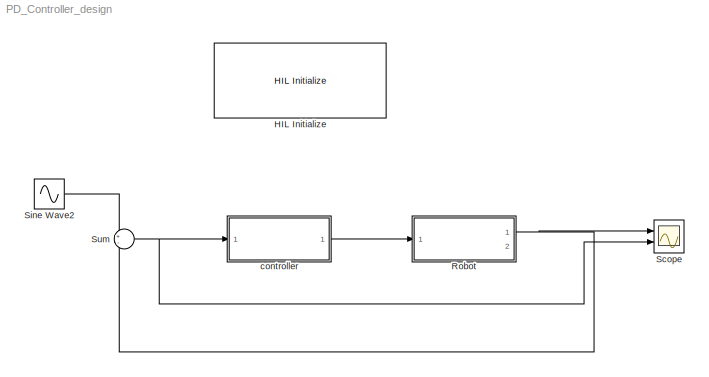
MODEL PD_Controller_design
KIND model
BLOCK [Reference] HIL Initialize  REF=quarc_library/Data Acquisition/Generic/Configuration/HIL Initialize
  AttributesFormatString = %<object_name> (%<board_type>-%<board_number>)
  Ports = []
  SID = 39
  SourceBlock = quarc_library/Data Acquisition/Generic/Configuration/HIL Initialize
  SourceType = HIL Initialize
  UserData = DataTag0
  UserDataPersistent = on
  active = on
  analog_input_channels = [0:3]
  analog_input_maximums = 10
  analog_input_minimums = -10
  analog_output_channels = [0:3]
  analog_output_maximums = [10]
  analog_output_minimums = [-10]
  board_number = 0
  board_type = q4
  clock_modes = [0 0]
  digital_input_channels = []
  digital_output_channels = [0:3]
  digital_output_configuration = []
  encoder_channels = [0:3]
  encoder_filter_frequency = (1/60e-9)/1
  exclusive = off
  final_analog_outputs = [0]
  final_digital_outputs = [1]
  final_other_outputs = []
  final_pwm_outputs = [0]
  hardware_clocks = [0:1]
  initial_analog_outputs = [0]
  initial_clock_frequencies = []
  initial_digital_outputs = [1]
  initial_encoder_counts = [0]
  initial_other_outputs = []
  initial_pwm_outputs = [0]
  object_name = HIL-2
  other_output_channels = []
  pwm_alignment = []
  pwm_channels = []
  pwm_configuration = []
  pwm_frequency = (1/60e-9)/1024
  pwm_leading_deadband = []
  pwm_modes = [0]
  pwm_polarity = []
  pwm_trailing_deadband = []
  quadrature = [4]
  set_analog_input_params_at_start = off
  set_analog_input_params_at_switch_in = off
  set_analog_output_params_at_start = on
  set_analog_output_params_at_switch_in = off
  set_analog_outputs_at_start = on
  set_analog_outputs_at_switch_in = off
  set_analog_outputs_at_switch_out = off
  set_analog_outputs_at_terminate = on
  set_analog_outputs_on_watchdog = off
  set_clock_frequencies_at_start = off
  set_clock_frequencies_at_switch_in = off
  set_clock_params_at_start = on
  set_clock_params_at_switch_in = off
  set_digital_output_params_at_start = off
  set_digital_output_params_at_switch_in = off
  set_digital_outputs_at_start = on
  set_digital_outputs_at_switch_in = off
  set_digital_outputs_at_switch_out = off
  set_digital_outputs_at_terminate = on
  set_digital_outputs_on_watchdog = off
  set_encoder_counts_at_start = on
  set_encoder_counts_at_switch_in = off
  set_encoder_params_at_start = on
  set_encoder_params_at_switch_in = off
  set_other_outputs_at_start = off
  set_other_outputs_at_switch_in = off
  set_other_outputs_at_switch_out = off
  set_other_outputs_at_terminate = off
  set_other_outputs_on_watchdog = off
  set_pwm_outputs_at_start = on
  set_pwm_outputs_at_switch_in = off
  set_pwm_outputs_at_switch_out = off
  set_pwm_outputs_at_terminate = on
  set_pwm_outputs_on_watchdog = off
  set_pwm_params_at_start = on
  set_pwm_params_at_switch_in = off
  watchdog_analog_outputs = 0
  watchdog_digital_outputs = [2]
  watchdog_other_outputs = []
  watchdog_pwm_outputs = []
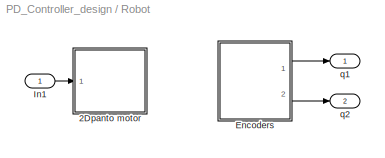
BLOCK [SubSystem] Robot
  FunctionWithSeparateData = off
  MaskHideContents = off
  MinAlgLoopOccurrences = off
  Opaque = off
  Ports = [1, 2]
  PropExecContextOutsideSubsystem = off
  RTWSystemCode = Auto
  RequestExecContextInheritance = off
  SID = 272
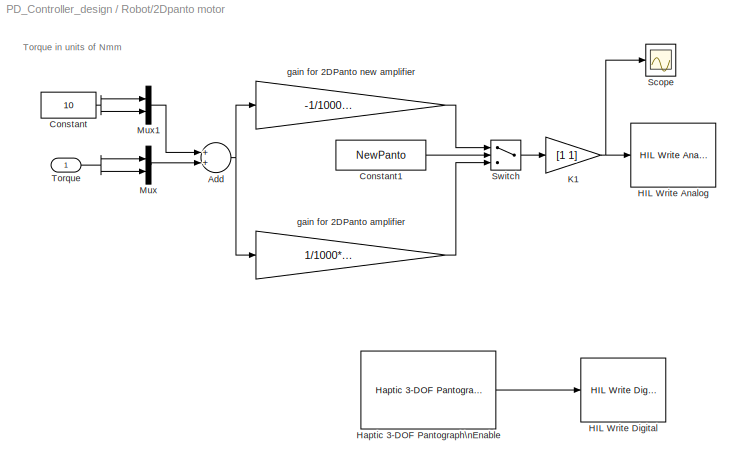
BLOCK [SubSystem] Robot/2Dpanto motor
  FunctionWithSeparateData = off
  MaskHideContents = off
  MinAlgLoopOccurrences = off
  Opaque = off
  Ports = [1]
  PropExecContextOutsideSubsystem = off
  RTWSystemCode = Auto
  RequestExecContextInheritance = off
  SID = 293
BLOCK [Sum] Robot/2Dpanto motor/Add
  InputSameDT = off
  OutDataTypeStr = Inherit: Inherit via internal rule
  Ports = [2, 1]
  SID = 295
  SaturateOnIntegerOverflow = off
BLOCK [Constant] Robot/2Dpanto motor/Constant
  SID = 296
  Value = 10
BLOCK [Constant] Robot/2Dpanto motor/Constant1
  SID = 297
  Value = NewPanto
BLOCK [Reference] Robot/2Dpanto motor/HIL Write Analog  REF=quarc_library/Data Acquisition/Generic/Immediate I//O/HIL Write Analog
  AttributesFormatString = (%<object_name>)
  Ports = [1]
  SID = 298
  SourceBlock = quarc_library/Data Acquisition/Generic/Immediate I//O/HIL Write Analog
  SourceType = HIL Write Analog
  UserData = DataTag1
  UserDataPersistent = on
  active = off
  channels = 0:1
  object_name = HIL-2
  sample_time = -1
  vector_input = on
BLOCK [Reference] Robot/2Dpanto motor/HIL Write Digital  REF=quarc_library/Data Acquisition/Generic/Immediate I//O/HIL Write Digital
  AttributesFormatString = (%<object_name>)
  Ports = [1]
  SID = 299
  SourceBlock = quarc_library/Data Acquisition/Generic/Immediate I//O/HIL Write Digital
  SourceType = HIL Write Digital
  UserData = DataTag2
  UserDataPersistent = on
  active = off
  channels = 0:3
  object_name = HIL-2
  sample_time = -1
  vector_input = on
BLOCK [Reference] Robot/2Dpanto motor/Haptic 3-DOF Pantograph\nEnable  REF=quarc_library/Devices/Quanser/Haptics/Pantographs/Haptic 3-DOF\nPlanar Pantograph/Interfacing/Haptic 3-DOF Pantograph\nEnable
  Ports = [0, 1]
  SID = 300
  SourceBlock = quarc_library/Devices/Quanser/Haptics/Pantographs/Haptic 3-DOF\nPlanar Pantograph/Interfacing/Haptic 3-DOF Pantograph\nEnable
  SourceType = Haptic 3-DOF Pantograph Enable
BLOCK [Gain] Robot/2Dpanto motor/K1
  Gain = [1 1]
  OutDataTypeStr = Inherit: Inherit via internal rule
  ParamDataTypeStr = Inherit: Inherit via internal rule
  SID = 301
  SaturateOnIntegerOverflow = off
BLOCK [Mux] Robot/2Dpanto motor/Mux
  DisplayOption = bar
  Inputs = 2
  Ports = [2, 1]
  SID = 302
BLOCK [Mux] Robot/2Dpanto motor/Mux1
  DisplayOption = bar
  Inputs = 2
  Ports = [2, 1]
  SID = 303
BLOCK [Scope] Robot/2Dpanto motor/Scope
  DataFormat = StructureWithTime
  Floating = off
  NumInputPorts = 1
  Ports = [1]
  SID = 304
  SampleTime = 0
  SaveName = ScopeData2
BLOCK [Switch] Robot/2Dpanto motor/Switch
  Criteria = u2 > Threshold
  InputSameDT = off
  SID = 305
  SaturateOnIntegerOverflow = off
BLOCK [Inport] Robot/2Dpanto motor/Torque
  IconDisplay = Port number
  SID = 294
BLOCK [Gain] Robot/2Dpanto motor/gain for 2DPanto amplifier
  Gain = 1/1000*2.17/4.9
  OutDataTypeStr = Inherit: Inherit via internal rule
  ParamDataTypeStr = Inherit: Inherit via internal rule
  SID = 306
  SaturateOnIntegerOverflow = off
BLOCK [Gain] Robot/2Dpanto motor/gain for 2DPanto new amplifier
  Gain = -1/1000*4*2.17/4.9
  OutDataTypeStr = Inherit: Inherit via internal rule
  ParamDataTypeStr = Inherit: Inherit via internal rule
  SID = 307
  SaturateOnIntegerOverflow = off
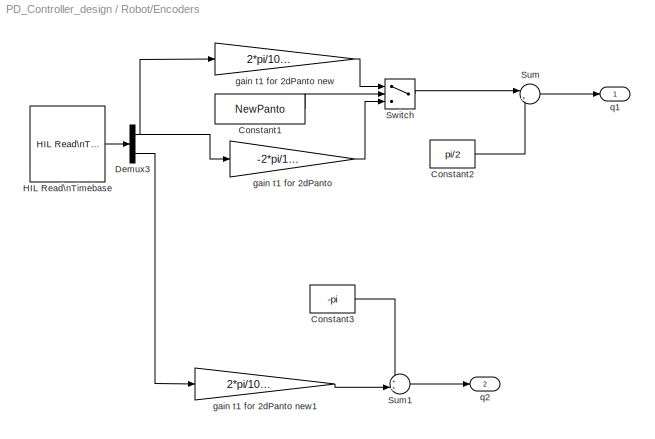
BLOCK [SubSystem] Robot/Encoders
  FunctionWithSeparateData = off
  MaskHideContents = off
  MinAlgLoopOccurrences = off
  Opaque = off
  Ports = [0, 2]
  PropExecContextOutsideSubsystem = off
  RTWSystemCode = Auto
  RequestExecContextInheritance = off
  SID = 279
BLOCK [Constant] Robot/Encoders/Constant1
  SID = 280
  Value = NewPanto
BLOCK [Constant] Robot/Encoders/Constant2
  SID = 281
  Value = pi/2
BLOCK [Constant] Robot/Encoders/Constant3
  SID = 282
  Value = -pi
BLOCK [Demux] Robot/Encoders/Demux3
  DisplayOption = bar
  Outputs = 3
  Ports = [1, 3]
  SID = 283
BLOCK [Reference] Robot/Encoders/HIL Read\nTimebase  REF=quarc_library/Data Acquisition/Generic/Timebases/HIL Read\nTimebase
  AttributesFormatString = (%<object_name>)
  Ports = [0, 1]
  SID = 284
  SourceBlock = quarc_library/Data Acquisition/Generic/Timebases/HIL Read\nTimebase
  SourceType = HIL Read Timebase
  UserData = DataTag3
  UserDataPersistent = on
  active = on
  analog_channels = []
  clock = 0
  data_type_mode = Inherit via back propagation
  digital_channels = []
  digital_data_type = boolean
  encoder_channels = [0:2]
  encoder_data_type = double
  object_name = HIL-2
  other_channels = []
  samples_in_buffer = max(ceil(1/qc_get_step_size), 1)
  vector_output = on
BLOCK [Sum] Robot/Encoders/Sum
  IconShape = round
  InputSameDT = off
  Inputs = |++
  OutDataTypeStr = Inherit: Inherit via internal rule
  Ports = [2, 1]
  SID = 285
  SaturateOnIntegerOverflow = off
BLOCK [Sum] Robot/Encoders/Sum1
  IconShape = round
  InputSameDT = off
  Inputs = ++|
  OutDataTypeStr = Inherit: Inherit via internal rule
  Ports = [2, 1]
  SID = 286
  SaturateOnIntegerOverflow = off
BLOCK [Switch] Robot/Encoders/Switch
  Criteria = u2 > Threshold
  InputSameDT = off
  SID = 287
  SaturateOnIntegerOverflow = off
BLOCK [Gain] Robot/Encoders/gain t1 for 2dPanto
  Gain = -2*pi/1024/75
  OutDataTypeStr = Inherit: Inherit via internal rule
  ParamDataTypeStr = Inherit: Inherit via internal rule
  SID = 288
  SaturateOnIntegerOverflow = off
BLOCK [Gain] Robot/Encoders/gain t1 for 2dPanto new
  Gain = 2*pi/1024/75
  OutDataTypeStr = Inherit: Inherit via internal rule
  ParamDataTypeStr = Inherit: Inherit via internal rule
  SID = 289
  SaturateOnIntegerOverflow = off
BLOCK [Gain] Robot/Encoders/gain t1 for 2dPanto new1
  Gain = 2*pi/1000/5
  OutDataTypeStr = Inherit: Inherit via internal rule
  ParamDataTypeStr = Inherit: Inherit via internal rule
  SID = 290
  SaturateOnIntegerOverflow = off
BLOCK [Outport] Robot/Encoders/q1
  IconDisplay = Port number
  SID = 291
BLOCK [Outport] Robot/Encoders/q2
  IconDisplay = Port number
  Port = 2
  SID = 292
BLOCK [Inport] Robot/In1
  IconDisplay = Port number
  SID = 273
BLOCK [Outport] Robot/q1
  IconDisplay = Port number
  SID = 278
BLOCK [Outport] Robot/q2
  IconDisplay = Port number
  Port = 2
  SID = 308
BLOCK [Scope] Scope
  DataFormat = StructureWithTime
  Floating = off
  NumInputPorts = 2
  Ports = [2]
  SID = 178
  SampleTime = 0
  YMax = 2.7~5
  YMin = 0.5~-5
BLOCK [Sin] Sine Wave2
  Amplitude = 60*(pi/180)
  Bias = pi/2
  Frequency = (1/3)*(2*pi)
  Ports = [0, 1]
  SID = 245
  SampleTime = 0
BLOCK [Sum] Sum
  IconShape = round
  InputSameDT = off
  Inputs = +-
  OutDataTypeStr = Inherit: Inherit via internal rule
  Ports = [2, 1]
  SID = 309
  SaturateOnIntegerOverflow = off
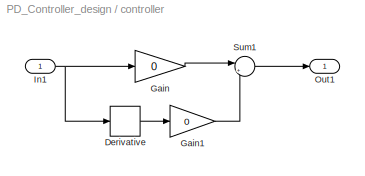
BLOCK [SubSystem] controller
  FunctionWithSeparateData = off
  MaskHideContents = off
  MinAlgLoopOccurrences = off
  Opaque = off
  Ports = [1, 1]
  PropExecContextOutsideSubsystem = off
  RTWSystemCode = Auto
  RequestExecContextInheritance = off
  SID = 74
BLOCK [Derivative] controller/Derivative
  SID = 73
BLOCK [Gain] controller/Gain
  Gain = 0
  OutDataTypeStr = Inherit: Inherit via internal rule
  ParamDataTypeStr = Inherit: Inherit via internal rule
  SID = 71
  SaturateOnIntegerOverflow = off
BLOCK [Gain] controller/Gain1
  Gain = 0
  OutDataTypeStr = Inherit: Inherit via internal rule
  ParamDataTypeStr = Inherit: Inherit via internal rule
  SID = 72
  SaturateOnIntegerOverflow = off
BLOCK [Inport] controller/In1
  IconDisplay = Port number
  SID = 75
BLOCK [Outport] controller/Out1
  IconDisplay = Port number
  SID = 76
BLOCK [Sum] controller/Sum1
  IconShape = round
  InputSameDT = off
  Inputs = |++
  OutDataTypeStr = Inherit: Inherit via internal rule
  Ports = [2, 1]
  SID = 311
  SaturateOnIntegerOverflow = off
ANNOTATION Robot/2Dpanto motor: Torque in units of Nmm
NET Robot/2Dpanto motor/Add:1 -> Robot/2Dpanto motor/gain for 2DPanto amplifier:1, Robot/2Dpanto motor/gain for 2DPanto new amplifier:1
LINE Robot/2Dpanto motor/Constant1:1 -> Robot/2Dpanto motor/Switch:2
NET Robot/2Dpanto motor/Constant:1 -> Robot/2Dpanto motor/Mux1:1, Robot/2Dpanto motor/Mux1:2
LINE Robot/2Dpanto motor/Haptic 3-DOF Pantograph\nEnable:1 -> Robot/2Dpanto motor/HIL Write Digital:1
NET Robot/2Dpanto motor/K1:1 -> Robot/2Dpanto motor/HIL Write Analog:1, Robot/2Dpanto motor/Scope:1
LINE Robot/2Dpanto motor/Mux1:1 -> Robot/2Dpanto motor/Add:1
LINE Robot/2Dpanto motor/Mux:1 -> Robot/2Dpanto motor/Add:2
LINE Robot/2Dpanto motor/Switch:1 -> Robot/2Dpanto motor/K1:1
NET Robot/2Dpanto motor/Torque:1 -> Robot/2Dpanto motor/Mux:1, Robot/2Dpanto motor/Mux:2
LINE Robot/2Dpanto motor/gain for 2DPanto amplifier:1 -> Robot/2Dpanto motor/Switch:3
LINE Robot/2Dpanto motor/gain for 2DPanto new amplifier:1 -> Robot/2Dpanto motor/Switch:1
LINE Robot/Encoders/Constant1:1 -> Robot/Encoders/Switch:2
LINE Robot/Encoders/Constant2:1 -> Robot/Encoders/Sum:2
LINE Robot/Encoders/Constant3:1 -> Robot/Encoders/Sum1:1
NET Robot/Encoders/Demux3:1 -> Robot/Encoders/gain t1 for 2dPanto new:1, Robot/Encoders/gain t1 for 2dPanto:1
LINE Robot/Encoders/Demux3:3 -> Robot/Encoders/gain t1 for 2dPanto new1:1
LINE Robot/Encoders/HIL Read\nTimebase:1 -> Robot/Encoders/Demux3:1
LINE Robot/Encoders/Sum1:1 -> Robot/Encoders/q2:1
LINE Robot/Encoders/Sum:1 -> Robot/Encoders/q1:1
LINE Robot/Encoders/Switch:1 -> Robot/Encoders/Sum:1
LINE Robot/Encoders/gain t1 for 2dPanto new1:1 -> Robot/Encoders/Sum1:2
LINE Robot/Encoders/gain t1 for 2dPanto new:1 -> Robot/Encoders/Switch:1
LINE Robot/Encoders/gain t1 for 2dPanto:1 -> Robot/Encoders/Switch:3
LINE Robot/Encoders:1 -> Robot/q1:1
LINE Robot/Encoders:2 -> Robot/q2:1
LINE Robot/In1:1 -> Robot/2Dpanto motor:1
NET Robot:1 -> Scope:1, Sum:2
LINE Sine Wave2:1 -> Sum:1
NET Sum:1 -> Scope:2, controller:1
LINE controller/Derivative:1 -> controller/Gain1:1
LINE controller/Gain1:1 -> controller/Sum1:2
LINE controller/Gain:1 -> controller/Sum1:1
NET controller/In1:1 -> controller/Derivative:1, controller/Gain:1
LINE controller/Sum1:1 -> controller/Out1:1
LINE controller:1 -> Robot:1
note: NET lines group one-source signal fan-out (src -> all destinations, sorted); 1:1 wires keep LINE
